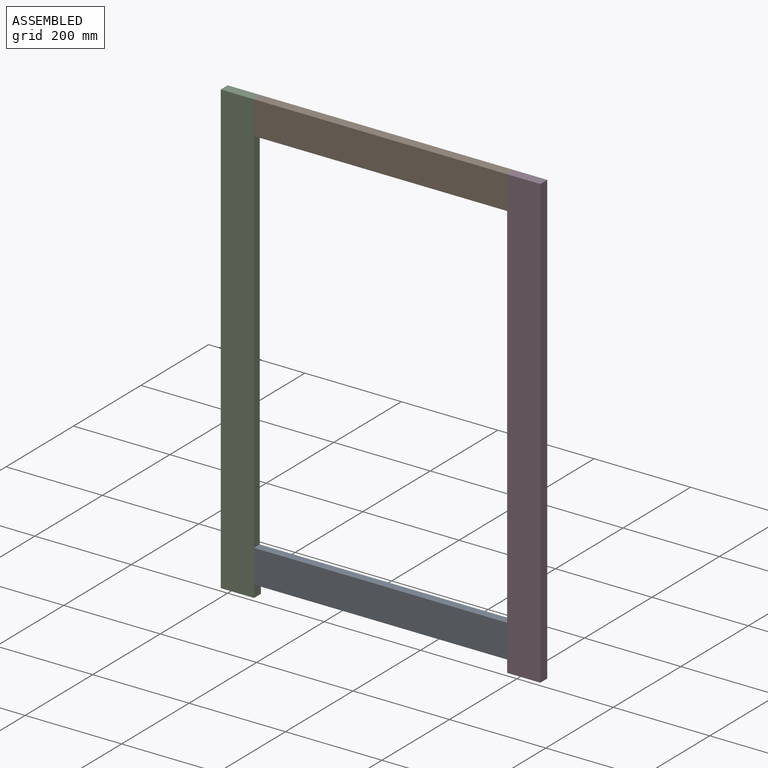
[diagram: assembled view]
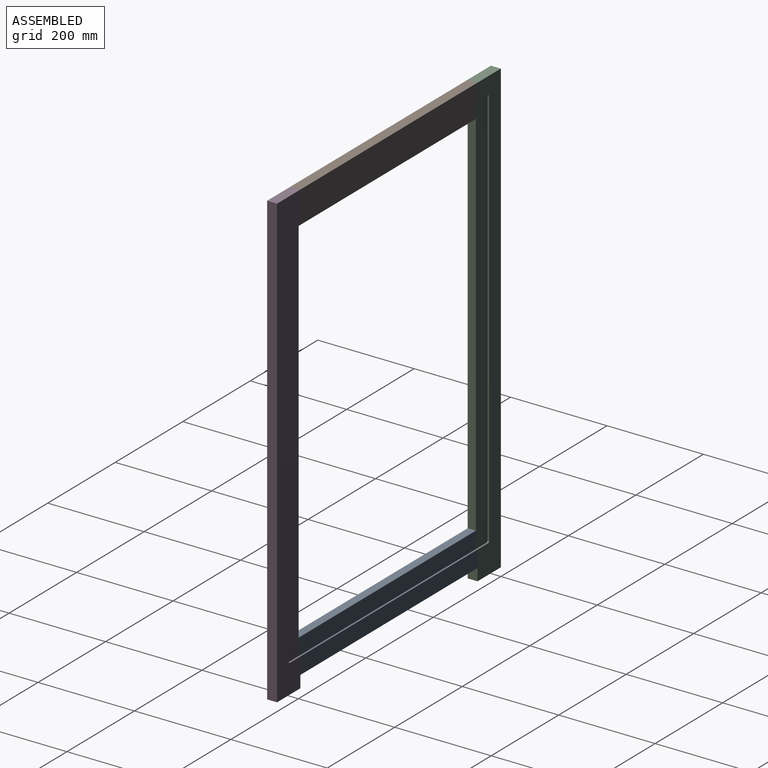
[diagram: assembled view, second angle]
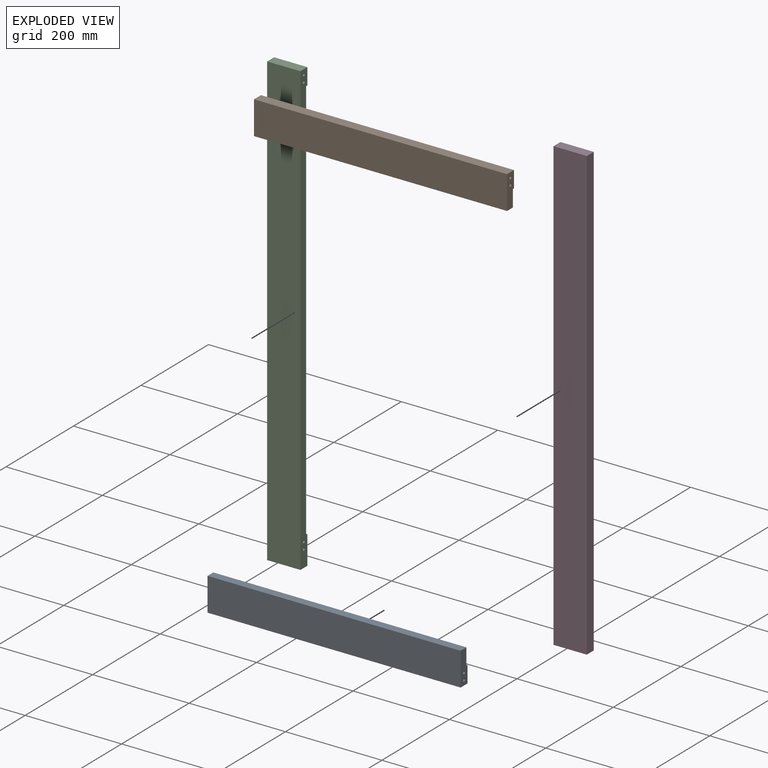
[diagram: exploded view]
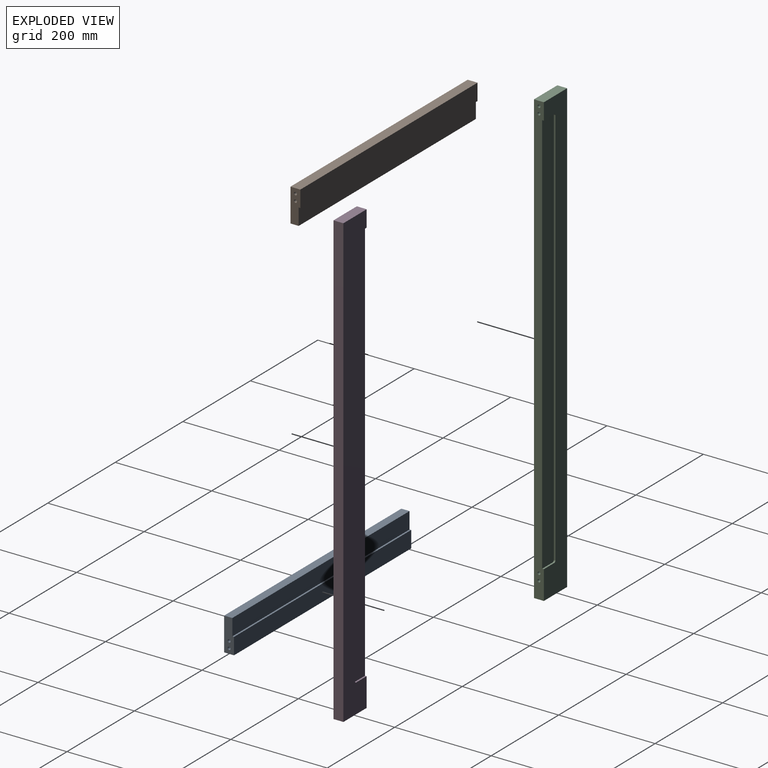
[diagram: exploded view, second angle]
ASSEMBLY  parts=4 mates=3
PART A: 16 faces, bbox 525x20.5x69 mm
  f0: plane 69x20.5mm, normal (-1,0,0), area 1237.2mm2, adj f2,f3,f4,f5,f6,f7,f8,f10
  f1: plane 69x20.5mm, normal (1,0,0), area 1237.2mm2, adj f2,f3,f4,f5,f6,f7,f12,f14
  f2: plane 525x20.5mm, normal (0,0,-1), area 10762.5mm2, adj f0,f1,f4,f5
  f3: plane 525x17mm, normal (0,0,1), area 8925mm2, adj f0,f1,f4,f7
  f4: plane 525x69mm, normal (0,-1,0), area 36225mm2, adj f0,f1,f2,f3
  f5: plane 525x34.5mm, normal (0,1,0), area 18112.5mm2, adj f0,f1,f2,f6
  f6: plane 525x3.5mm, normal (0,0,1), area 1837.5mm2, adj f0,f1,f5,f7
  f7: plane 525x34.5mm, normal (0,1,0), area 18112.5mm2, adj f0,f1,f3,f6
  f8: cylinder r=3mm len=18mm, axis (-1,0,0), area 339.3mm2, adj f0,f9
  f9: plane 6x6mm, normal (-1,0,0), area 28.3mm2, adj f8
  f10: cylinder r=3mm len=18mm, axis (-1,0,0), area 339.3mm2, adj f0,f11
  f11: plane 6x6mm, normal (-1,0,0), area 28.3mm2, adj f10
  f12: cylinder r=3mm len=18mm, axis (1,0,0), area 339.3mm2, adj f1,f13
  f13: plane 6x6mm, normal (1,0,0), area 28.3mm2, adj f12
  f14: cylinder r=3mm len=18mm, axis (1,0,0), area 339.3mm2, adj f1,f15
  f15: plane 6x6mm, normal (1,0,0), area 28.3mm2, adj f14
PART B: 16 faces, bbox 525x20.5x69 mm
  f0: plane 525x34.5mm, normal (0,1,0), area 18112.5mm2, adj f1,f3,f4,f6
  f1: plane 69x20.5mm, normal (-1,0,0), area 1237.2mm2, adj f0,f2,f4,f5,f6,f7,f8,f10
  f2: plane 525x17mm, normal (0,0,-1), area 8925mm2, adj f1,f3,f5,f7
  f3: plane 69x20.5mm, normal (1,0,0), area 1237.2mm2, adj f0,f2,f4,f5,f6,f7,f12,f14
  f4: plane 525x20.5mm, normal (0,0,1), area 10762.5mm2, adj f0,f1,f3,f5
  f5: plane 525x69mm, normal (0,-1,0), area 36225mm2, adj f1,f2,f3,f4
  f6: plane 525x3.5mm, normal (0,0,-1), area 1837.5mm2, adj f0,f1,f3,f7
  f7: plane 525x34.5mm, normal (0,1,0), area 18112.5mm2, adj f1,f2,f3,f6
  f8: cylinder r=3mm len=18mm, axis (-1,0,0), area 339.3mm2, adj f1,f9
  f9: plane 6x6mm, normal (-1,0,0), area 28.3mm2, adj f8
  f10: cylinder r=3mm len=18mm, axis (-1,0,0), area 339.3mm2, adj f1,f11
  f11: plane 6x6mm, normal (-1,0,0), area 28.3mm2, adj f10
  f12: cylinder r=3mm len=18mm, axis (1,0,0), area 339.3mm2, adj f3,f13
  f13: plane 6x6mm, normal (1,0,0), area 28.3mm2, adj f12
  f14: cylinder r=3mm len=18mm, axis (1,0,0), area 339.3mm2, adj f3,f15
  f15: plane 6x6mm, normal (1,0,0), area 28.3mm2, adj f14
PART C: 20 faces, bbox 69x20.5x935 mm
  f0: plane 935x20.5mm, normal (1,0,0), area 16110.9mm2, adj f1,f3,f4,f5,f6,f7,f8,f12
  f1: plane 69x20.5mm, normal (0,0,1), area 1414.5mm2, adj f0,f2,f4,f5
  f2: plane 935x20.5mm, normal (-1,0,0), area 19167.5mm2, adj f1,f3,f4,f5
  f3: plane 69x20.5mm, normal (0,0,-1), area 1414.5mm2, adj f0,f2,f4,f5
  f4: plane 935x69mm, normal (0,-1,0), area 64515mm2, adj f0,f1,f2,f3
  f5: plane 935x69mm, normal (0,1,0), area 35505.8mm2, adj f0,f1,f2,f3,f6,f7,f9,f10
  f6: plane 31x3.5mm, normal (0,0,-1), area 108.5mm2, adj f0,f5,f8,f9
  f7: plane 31x3.5mm, normal (0,0,1), area 108.5mm2, adj f0,f5,f8,f11
  f8: plane 841x34.5mm, normal (0,1,0), area 29009.2mm2, adj f0,f6,f7,f9,f10,f11
  f9: cylinder r=3.5mm len=3.5mm, axis (0,1,0), area 19.2mm2, adj f5,f6,f8,f10
  f10: plane 834x3.5mm, normal (1,0,0), area 2919mm2, adj f5,f8,f9,f11
  f11: cylinder r=3.5mm len=3.5mm, axis (0,1,0), area 19.2mm2, adj f5,f7,f8,f10
  f12: cylinder r=3mm len=16mm, axis (1,0,0), area 301.6mm2, adj f0,f13
  f13: plane 6x6mm, normal (1,0,0), area 28.3mm2, adj f12
  f14: cylinder r=3mm len=16mm, axis (1,0,0), area 301.6mm2, adj f0,f15
  f15: plane 6x6mm, normal (1,0,0), area 28.3mm2, adj f14
  f16: cylinder r=3mm len=16mm, axis (1,0,0), area 301.6mm2, adj f0,f17
  f17: plane 6x6mm, normal (1,0,0), area 28.3mm2, adj f16
  f18: cylinder r=3mm len=16mm, axis (1,0,0), area 301.6mm2, adj f0,f19
  f19: plane 6x6mm, normal (1,0,0), area 28.3mm2, adj f18
PART D: 20 faces, bbox 69x20.5x935 mm
  f0: plane 935x20.5mm, normal (-1,0,0), area 16110.9mm2, adj f1,f3,f4,f5,f6,f7,f8,f12
  f1: plane 69x20.5mm, normal (0,0,-1), area 1414.5mm2, adj f0,f2,f4,f5
  f2: plane 935x20.5mm, normal (1,0,0), area 19167.5mm2, adj f1,f3,f4,f5
  f3: plane 69x20.5mm, normal (0,0,1), area 1414.5mm2, adj f0,f2,f4,f5
  f4: plane 935x69mm, normal (0,-1,0), area 64515mm2, adj f0,f1,f2,f3
  f5: plane 935x69mm, normal (0,1,0), area 35505.8mm2, adj f0,f1,f2,f3,f6,f7,f9,f10
  f6: plane 31x3.5mm, normal (0,0,-1), area 108.5mm2, adj f0,f5,f8,f11
  f7: plane 31x3.5mm, normal (0,0,1), area 108.5mm2, adj f0,f5,f8,f9
  f8: plane 841x34.5mm, normal (0,1,0), area 29009.2mm2, adj f0,f6,f7,f9,f10,f11
  f9: cylinder r=3.5mm len=3.5mm, axis (0,1,0), area 19.2mm2, adj f5,f7,f8,f10
  f10: plane 834x3.5mm, normal (-1,0,0), area 2919mm2, adj f5,f8,f9,f11
  f11: cylinder r=3.5mm len=3.5mm, axis (0,1,0), area 19.2mm2, adj f5,f6,f8,f10
  f12: cylinder r=3mm len=16mm, axis (-1,0,0), area 301.6mm2, adj f0,f13
  f13: plane 6x6mm, normal (-1,0,0), area 28.3mm2, adj f12
  f14: cylinder r=3mm len=16mm, axis (-1,0,0), area 301.6mm2, adj f0,f15
  f15: plane 6x6mm, normal (-1,0,0), area 28.3mm2, adj f14
  f16: cylinder r=3mm len=16mm, axis (-1,0,0), area 301.6mm2, adj f0,f17
  f17: plane 6x6mm, normal (-1,0,0), area 28.3mm2, adj f16
  f18: cylinder r=3mm len=16mm, axis (-1,0,0), area 301.6mm2, adj f0,f19
  f19: plane 6x6mm, normal (-1,0,0), area 28.3mm2, adj f18
PLACE A at identity
PLACE B at identity
PLACE C at identity
PLACE D at identity
MATE fastened D.f5 <-> A.f5  axis (0,1,0) through (594,0,59.5)mm
MATE fastened B.f0 <-> C.f5  axis (0,1,0) through (69,0,935)mm
MATE fastened D.f5 <-> B.f0  axis (0,1,0) through (594,0,935)mm
